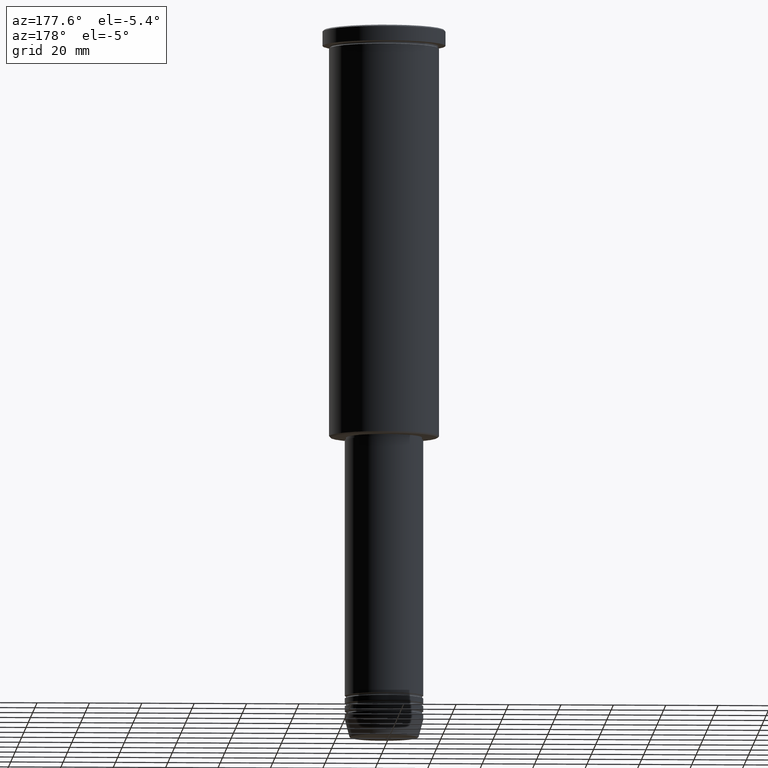
[diagram: clean part render]
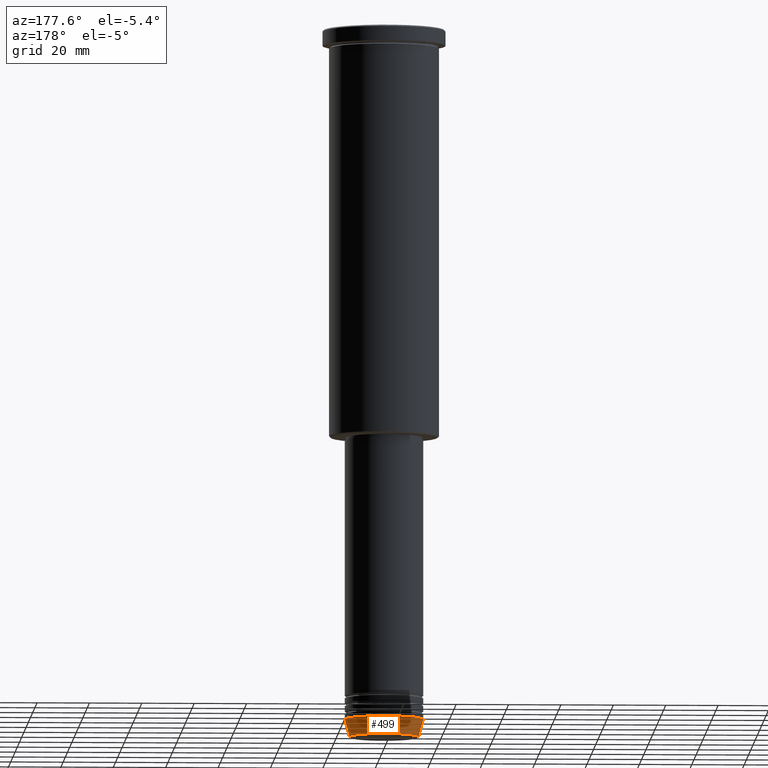
[diagram: same view with one face highlighted and labeled with its STEP entity id]
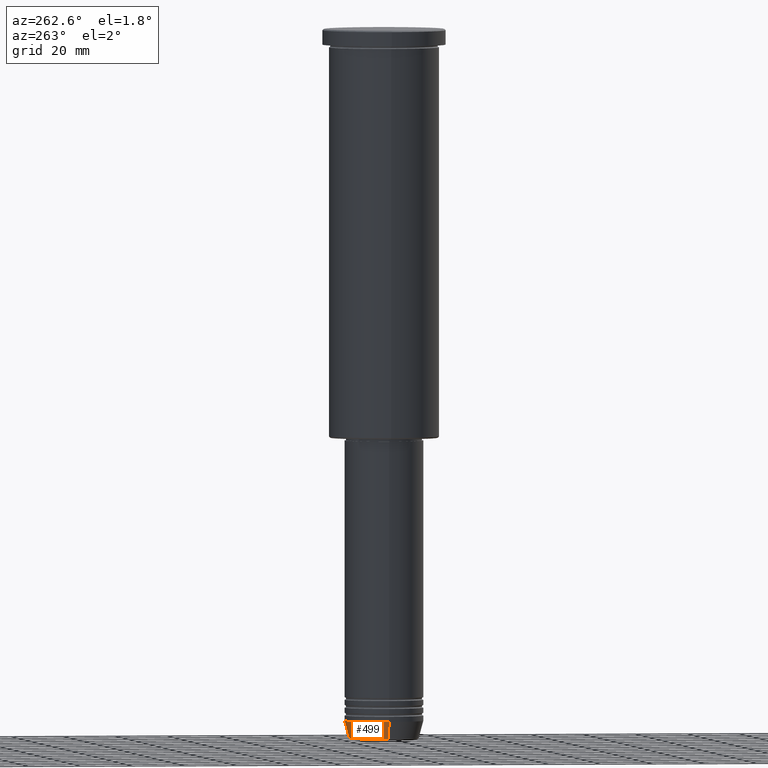
[diagram: same view with one face highlighted and labeled with its STEP entity id]
A machine part, auxiliary view. The second image highlights one B-rep face of the part: STEP entity #499.
A second angle (auxiliary view) of the same face is appended — the face is thin or edge-on in the first view.
In plain terms, the highlighted conical surface has half-angle 15 deg.
Its self-contained STEP definition (entity closure, byte-faithful):
#39 = DIRECTION ( 'NONE',  ( 1.000000000000000000, 0.000000000000000000, 0.000000000000000000 ) ) ;
#48 = AXIS2_PLACEMENT_3D ( 'NONE', #695, #308, #209 ) ;
#59 = CARTESIAN_POINT ( 'NONE',  ( 0.000000000000000000, 0.000000000000000000, -264.0000000000000000 ) ) ;
#70 = EDGE_CURVE ( 'NONE', #239, #1092, #836, .T. ) ;
#125 = CARTESIAN_POINT ( 'NONE',  ( 0.000000000000000000, 0.000000000000000000, -270.6294095225513274 ) ) ;
#126 = VECTOR ( 'NONE', #932, 1000.000000000000000 ) ;
#139 = CARTESIAN_POINT ( 'NONE',  ( 13.22365507213718772, 0.000000000000000000, -270.6294095225513274 ) ) ;
#165 = DIRECTION ( 'NONE',  ( -0.000000000000000000, -0.000000000000000000, 1.000000000000000000 ) ) ;
#167 = CONICAL_SURFACE ( 'NONE', #48, 15.00000000000000000, 0.2617993877991500740 ) ;
#190 = CARTESIAN_POINT ( 'NONE',  ( -15.00000000000000000, 1.836970198721029589E-15, -264.0000000000000000 ) ) ;
#209 = DIRECTION ( 'NONE',  ( 1.000000000000000000, 0.000000000000000000, 0.000000000000000000 ) ) ;
#239 = VERTEX_POINT ( 'NONE', #731 ) ;
#286 = EDGE_CURVE ( 'NONE', #918, #239, #331, .T. ) ;
#308 = DIRECTION ( 'NONE',  ( -0.000000000000000000, -0.000000000000000000, 1.000000000000000000 ) ) ;
#331 = CIRCLE ( 'NONE', #1077, 13.22365507213718772 ) ;
#363 = CARTESIAN_POINT ( 'NONE',  ( 15.00000000000000000, 0.000000000000000000, -264.0000000000000000 ) ) ;
#365 = ORIENTED_EDGE ( 'NONE', *, *, #652, .F. ) ;
#499 = ADVANCED_FACE ( 'NONE', ( #789 ), #167, .T. ) ;
#524 = CARTESIAN_POINT ( 'NONE',  ( 15.00000000000000000, 0.000000000000000000, -264.0000000000000000 ) ) ;
#536 = CARTESIAN_POINT ( 'NONE',  ( -15.00000000000000000, 1.836970198721029589E-15, -264.0000000000000000 ) ) ;
#549 = VECTOR ( 'NONE', #807, 1000.000000000000000 ) ;
#621 = ORIENTED_EDGE ( 'NONE', *, *, #286, .T. ) ;
#652 = EDGE_CURVE ( 'NONE', #918, #759, #1073, .T. ) ;
#695 = CARTESIAN_POINT ( 'NONE',  ( 0.000000000000000000, 0.000000000000000000, -264.0000000000000000 ) ) ;
#707 = DIRECTION ( 'NONE',  ( 1.000000000000000000, 0.000000000000000000, 0.000000000000000000 ) ) ;
#731 = CARTESIAN_POINT ( 'NONE',  ( -13.22365507213718772, 1.728200442216588386E-15, -270.6294095225513274 ) ) ;
#740 = EDGE_LOOP ( 'NONE', ( #621, #812, #979, #365 ) ) ;
#759 = VERTEX_POINT ( 'NONE', #363 ) ;
#789 = FACE_OUTER_BOUND ( 'NONE', #740, .T. ) ;
#807 = DIRECTION ( 'NONE',  ( 0.2588190451025213501, 0.000000000000000000, 0.9659258262890680902 ) ) ;
#812 = ORIENTED_EDGE ( 'NONE', *, *, #70, .T. ) ;
#836 = LINE ( 'NONE', #190, #126 ) ;
#870 = CIRCLE ( 'NONE', #922, 15.00000000000000000 ) ;
#871 = DIRECTION ( 'NONE',  ( -0.000000000000000000, -0.000000000000000000, 1.000000000000000000 ) ) ;
#918 = VERTEX_POINT ( 'NONE', #139 ) ;
#922 = AXIS2_PLACEMENT_3D ( 'NONE', #59, #165, #707 ) ;
#932 = DIRECTION ( 'NONE',  ( -0.2588190451025213501, 3.169619151431772337E-17, 0.9659258262890680902 ) ) ;
#977 = EDGE_CURVE ( 'NONE', #759, #1092, #870, .T. ) ;
#979 = ORIENTED_EDGE ( 'NONE', *, *, #977, .F. ) ;
#1073 = LINE ( 'NONE', #524, #549 ) ;
#1077 = AXIS2_PLACEMENT_3D ( 'NONE', #125, #871, #39 ) ;
#1092 = VERTEX_POINT ( 'NONE', #536 ) ;